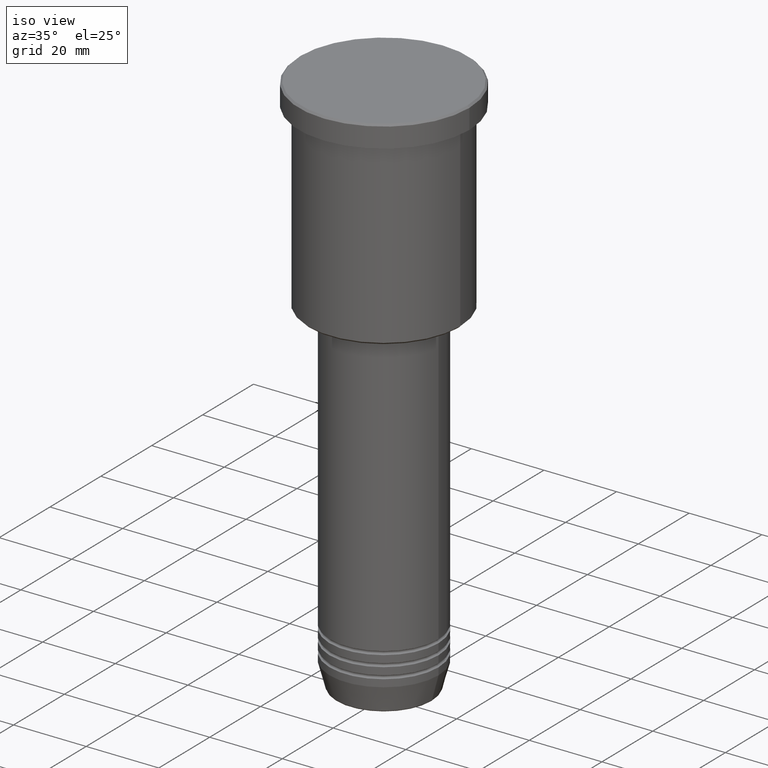
[diagram: clean part render]
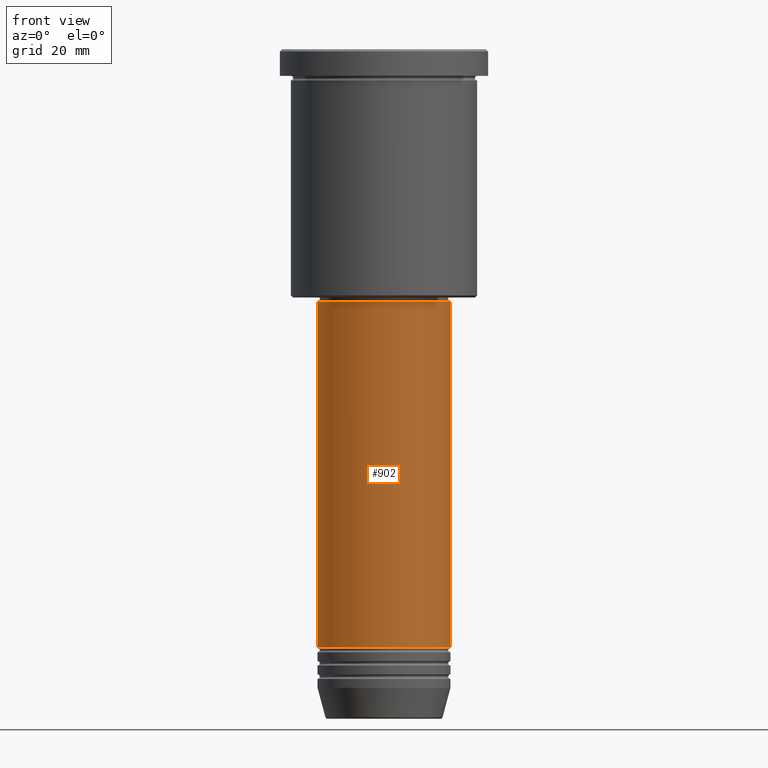
[diagram: tour spotlight — one face highlighted and labeled with its STEP entity id]
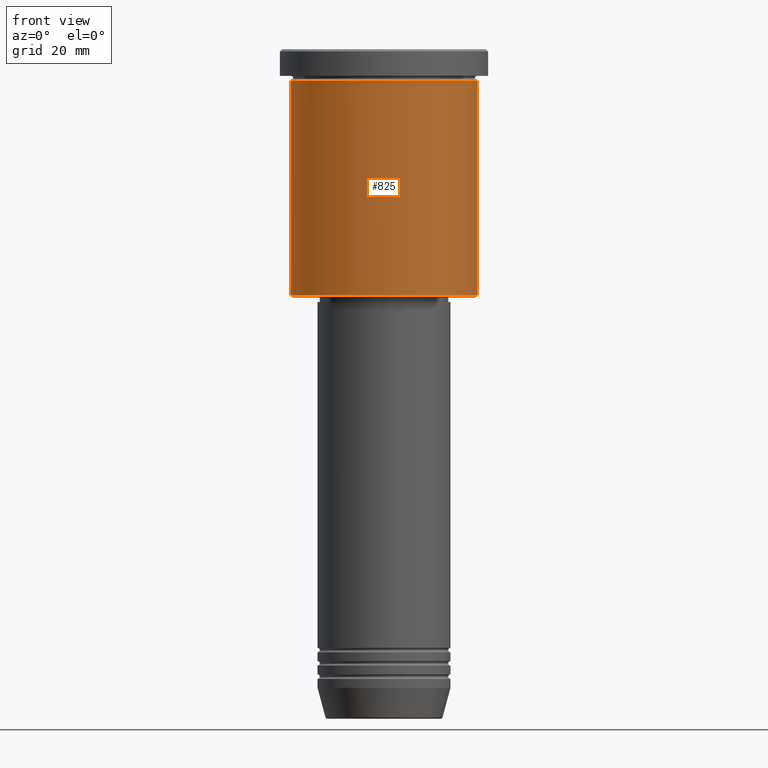
[diagram: tour spotlight — one face highlighted and labeled with its STEP entity id]
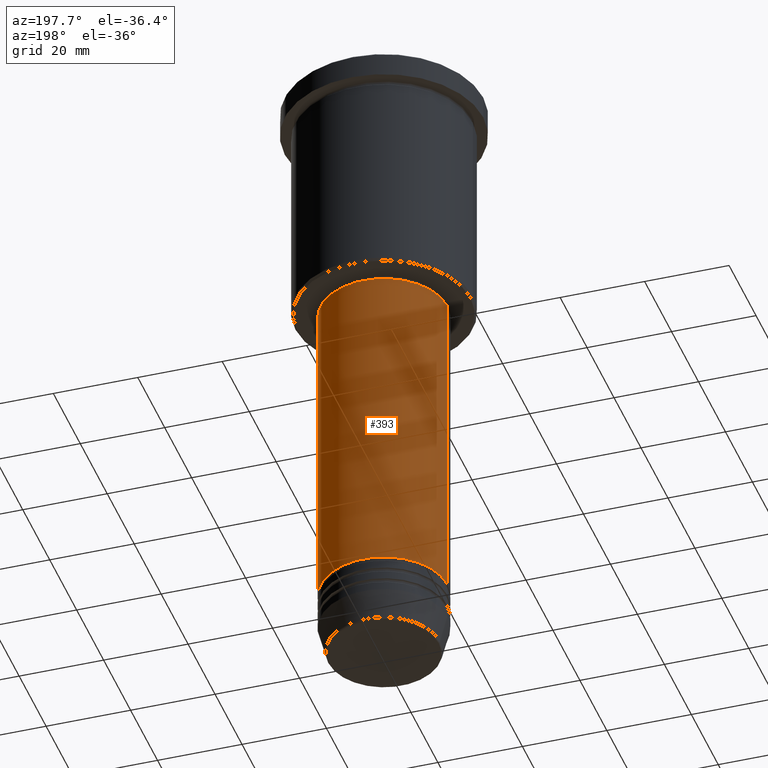
[diagram: tour spotlight — one face highlighted and labeled with its STEP entity id]
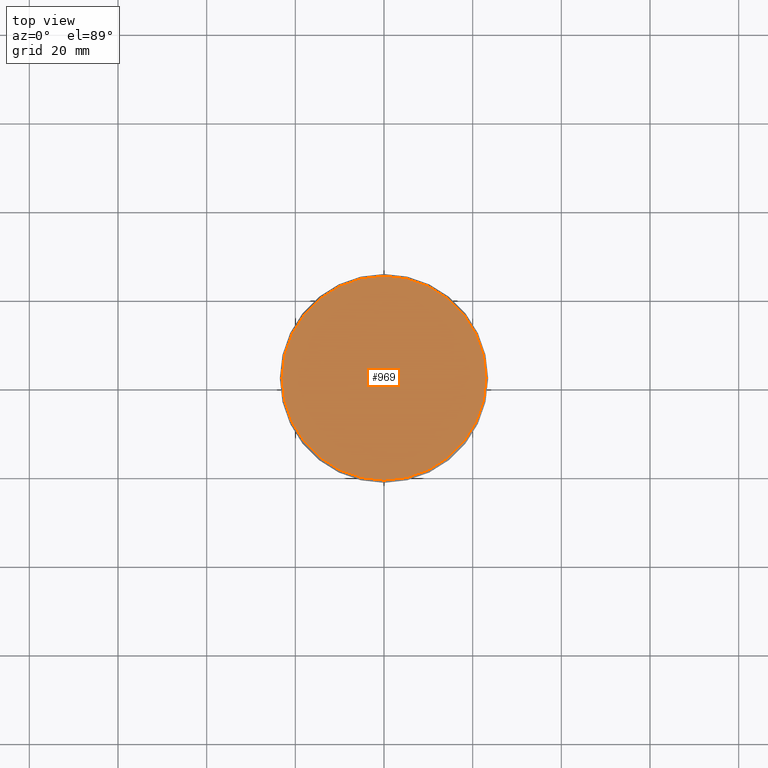
[diagram: tour spotlight — one face highlighted and labeled with its STEP entity id]
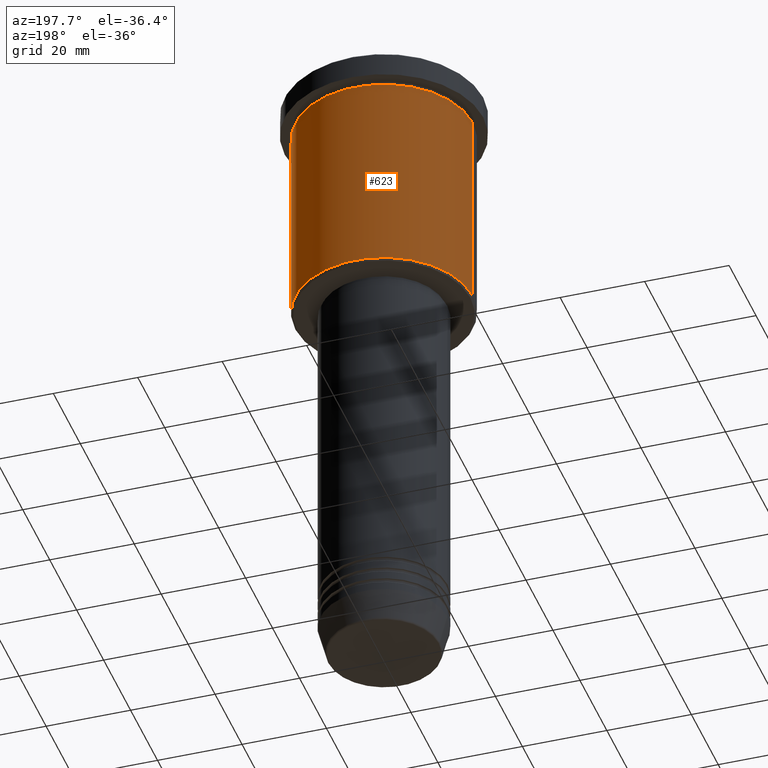
[diagram: tour spotlight — one face highlighted and labeled with its STEP entity id]
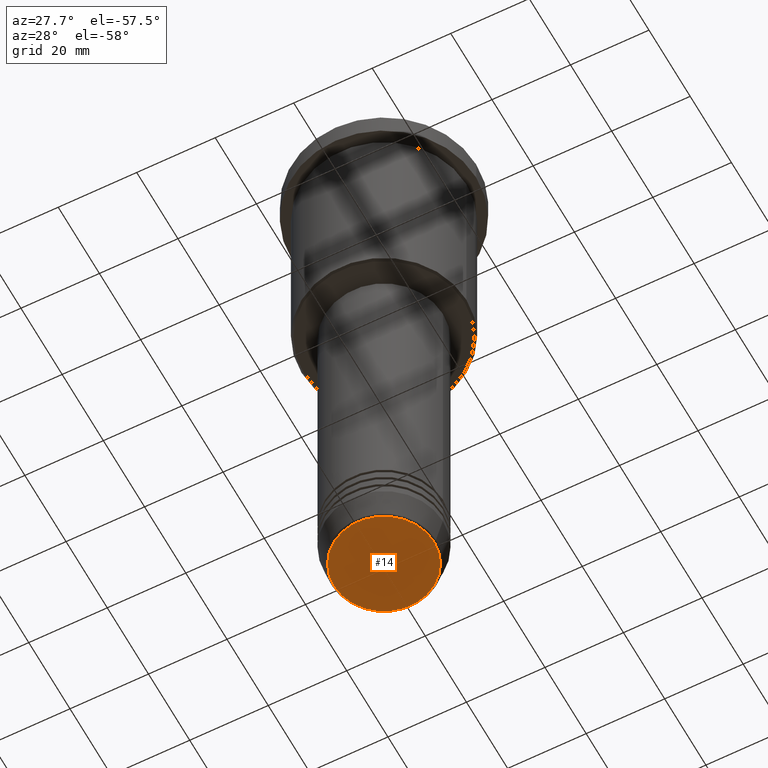
[diagram: tour spotlight — one face highlighted and labeled with its STEP entity id]
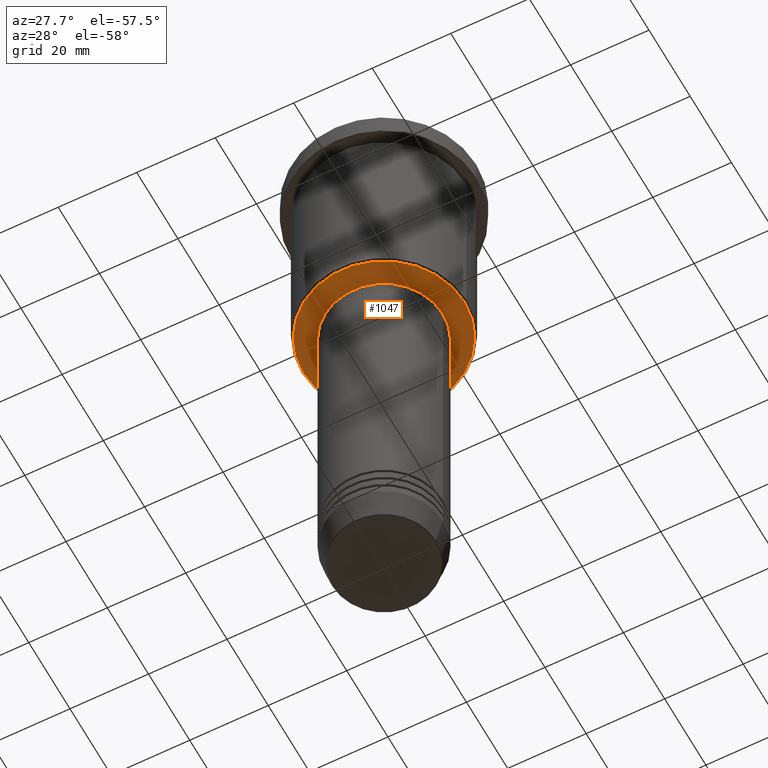
[diagram: tour spotlight — one face highlighted and labeled with its STEP entity id]
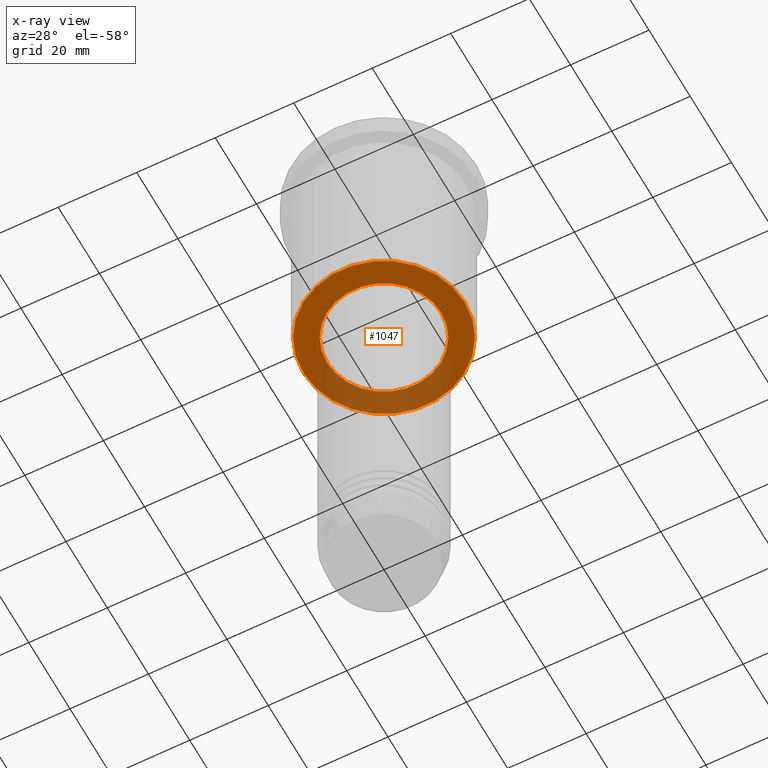
[diagram: x-ray of the same camera — body ghosted, this tour face saturated]
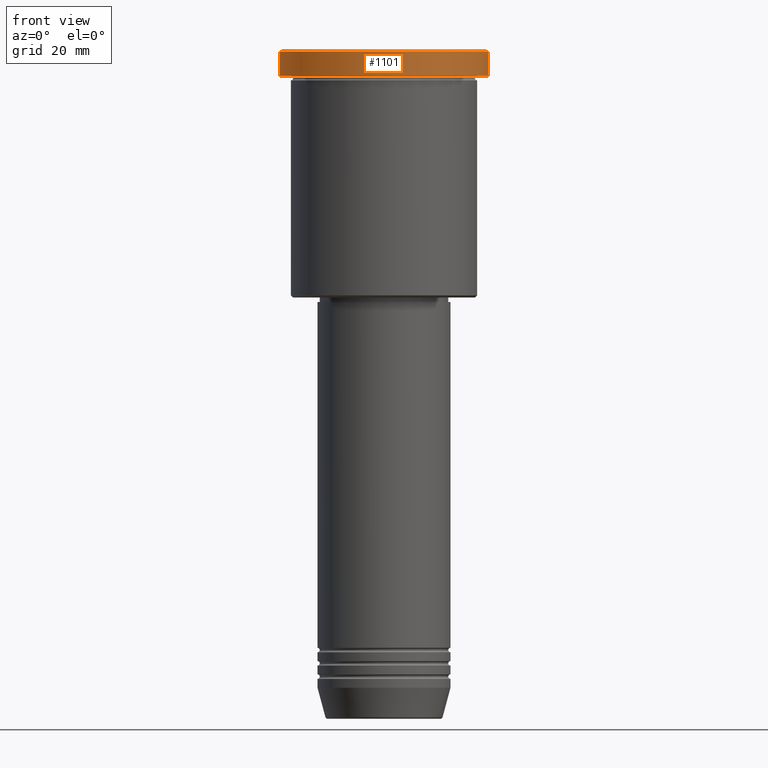
[diagram: tour spotlight — one face highlighted and labeled with its STEP entity id]
A machine part: a face-by-face anatomy tour. The part has 43 B-rep faces; the first image is the clean iso view, then the 8 largest visible faces are spotlighted one at a time (largest first), each with its STEP entity span.

Face 1 — front view, entity #902. In plain terms, the highlighted cylindrical surface (partial cylindrical patch) has radius 15 mm, axis along (-0, -0, 1).
Definition (entity closure, byte-faithful):
#22 = CARTESIAN_POINT ( 'NONE',  ( -15.00000000000000000, 1.836970198721029589E-15, 0.000000000000000000 ) ) ;
#75 = DIRECTION ( 'NONE',  ( -0.000000000000000000, -0.000000000000000000, 1.000000000000000000 ) ) ;
#79 = VERTEX_POINT ( 'NONE', #297 ) ;
#82 = CIRCLE ( 'NONE', #728, 15.00000000000000000 ) ;
#114 = DIRECTION ( 'NONE',  ( 1.000000000000000000, 0.000000000000000000, 0.000000000000000000 ) ) ;
#131 = VERTEX_POINT ( 'NONE', #847 ) ;
#157 = FACE_OUTER_BOUND ( 'NONE', #427, .T. ) ;
#162 = DIRECTION ( 'NONE',  ( -0.000000000000000000, -0.000000000000000000, 1.000000000000000000 ) ) ;
#191 = AXIS2_PLACEMENT_3D ( 'NONE', #700, #75, #802 ) ;
#231 = VERTEX_POINT ( 'NONE', #507 ) ;
#272 = CARTESIAN_POINT ( 'NONE',  ( 15.00000000000000000, 0.000000000000000000, -134.9999999999999716 ) ) ;
#277 = AXIS2_PLACEMENT_3D ( 'NONE', #1123, #1130, #114 ) ;
#297 = CARTESIAN_POINT ( 'NONE',  ( -15.00000000000000000, 1.836970198721029589E-15, -57.00000000000001421 ) ) ;
#360 = ORIENTED_EDGE ( 'NONE', *, *, #1147, .T. ) ;
#364 = VECTOR ( 'NONE', #606, 1000.000000000000000 ) ;
#381 = DIRECTION ( 'NONE',  ( -0.000000000000000000, -0.000000000000000000, 1.000000000000000000 ) ) ;
#391 = EDGE_CURVE ( 'NONE', #664, #231, #784, .T. ) ;
#402 = VECTOR ( 'NONE', #381, 1000.000000000000000 ) ;
#427 = EDGE_LOOP ( 'NONE', ( #746, #360, #1003, #999 ) ) ;
#444 = EDGE_CURVE ( 'NONE', #131, #79, #1134, .T. ) ;
#507 = CARTESIAN_POINT ( 'NONE',  ( 15.00000000000000000, 0.000000000000000000, -57.00000000000001421 ) ) ;
#606 = DIRECTION ( 'NONE',  ( -0.000000000000000000, -0.000000000000000000, 1.000000000000000000 ) ) ;
#664 = VERTEX_POINT ( 'NONE', #272 ) ;
#700 = CARTESIAN_POINT ( 'NONE',  ( 0.000000000000000000, 0.000000000000000000, 0.000000000000000000 ) ) ;
#728 = AXIS2_PLACEMENT_3D ( 'NONE', #822, #162, #741 ) ;
#741 = DIRECTION ( 'NONE',  ( 1.000000000000000000, 0.000000000000000000, 0.000000000000000000 ) ) ;
#746 = ORIENTED_EDGE ( 'NONE', *, *, #444, .F. ) ;
#784 = LINE ( 'NONE', #884, #364 ) ;
#802 = DIRECTION ( 'NONE',  ( 1.000000000000000000, 0.000000000000000000, 0.000000000000000000 ) ) ;
#804 = CIRCLE ( 'NONE', #277, 15.00000000000000000 ) ;
#822 = CARTESIAN_POINT ( 'NONE',  ( 0.000000000000000000, 0.000000000000000000, -57.00000000000001421 ) ) ;
#847 = CARTESIAN_POINT ( 'NONE',  ( -15.00000000000000000, 1.836970198721029589E-15, -134.9999999999999716 ) ) ;
#884 = CARTESIAN_POINT ( 'NONE',  ( 15.00000000000000000, 0.000000000000000000, 0.000000000000000000 ) ) ;
#902 = ADVANCED_FACE ( 'NONE', ( #157 ), #1093, .T. ) ;
#999 = ORIENTED_EDGE ( 'NONE', *, *, #1057, .F. ) ;
#1003 = ORIENTED_EDGE ( 'NONE', *, *, #391, .T. ) ;
#1057 = EDGE_CURVE ( 'NONE', #79, #231, #82, .T. ) ;
#1093 = CYLINDRICAL_SURFACE ( 'NONE', #191, 15.00000000000000000 ) ;
#1123 = CARTESIAN_POINT ( 'NONE',  ( 0.000000000000000000, 0.000000000000000000, -134.9999999999999716 ) ) ;
#1130 = DIRECTION ( 'NONE',  ( -0.000000000000000000, -0.000000000000000000, 1.000000000000000000 ) ) ;
#1134 = LINE ( 'NONE', #22, #402 ) ;
#1147 = EDGE_CURVE ( 'NONE', #131, #664, #804, .T. ) ;

Face 2 — front view, entity #825. In plain terms, the highlighted cylindrical surface (partial cylindrical patch) has radius 21 mm, axis along (-0, -0, 1).
Definition (entity closure, byte-faithful):
#3 = VERTEX_POINT ( 'NONE', #734 ) ;
#66 = AXIS2_PLACEMENT_3D ( 'NONE', #796, #609, #978 ) ;
#88 = DIRECTION ( 'NONE',  ( -0.000000000000000000, -0.000000000000000000, 1.000000000000000000 ) ) ;
#133 = FACE_OUTER_BOUND ( 'NONE', #1142, .T. ) ;
#155 = CARTESIAN_POINT ( 'NONE',  ( 21.00000000000000000, 0.000000000000000000, -55.50000000000002132 ) ) ;
#174 = AXIS2_PLACEMENT_3D ( 'NONE', #1166, #702, #424 ) ;
#181 = EDGE_CURVE ( 'NONE', #575, #373, #1170, .T. ) ;
#189 = CIRCLE ( 'NONE', #673, 21.00000000000000000 ) ;
#232 = DIRECTION ( 'NONE',  ( -0.000000000000000000, -0.000000000000000000, 1.000000000000000000 ) ) ;
#337 = CARTESIAN_POINT ( 'NONE',  ( 21.00000000000000000, 0.000000000000000000, 0.000000000000000000 ) ) ;
#373 = VERTEX_POINT ( 'NONE', #155 ) ;
#424 = DIRECTION ( 'NONE',  ( -1.000000000000000000, 0.000000000000000000, 0.000000000000000000 ) ) ;
#453 = ORIENTED_EDGE ( 'NONE', *, *, #181, .T. ) ;
#494 = CARTESIAN_POINT ( 'NONE',  ( -21.00000000000000000, 2.571758278209441661E-15, -6.999999999999994671 ) ) ;
#506 = LINE ( 'NONE', #596, #878 ) ;
#568 = ORIENTED_EDGE ( 'NONE', *, *, #628, .F. ) ;
#575 = VERTEX_POINT ( 'NONE', #911 ) ;
#596 = CARTESIAN_POINT ( 'NONE',  ( -21.00000000000000000, 2.571758278209441661E-15, 0.000000000000000000 ) ) ;
#609 = DIRECTION ( 'NONE',  ( -0.000000000000000000, -0.000000000000000000, 1.000000000000000000 ) ) ;
#625 = ORIENTED_EDGE ( 'NONE', *, *, #790, .F. ) ;
#627 = CARTESIAN_POINT ( 'NONE',  ( 0.000000000000000000, 0.000000000000000000, -6.999999999999994671 ) ) ;
#628 = EDGE_CURVE ( 'NONE', #1114, #3, #189, .T. ) ;
#633 = DIRECTION ( 'NONE',  ( 1.000000000000000000, 0.000000000000000000, 0.000000000000000000 ) ) ;
#673 = AXIS2_PLACEMENT_3D ( 'NONE', #627, #88, #633 ) ;
#682 = CYLINDRICAL_SURFACE ( 'NONE', #66, 21.00000000000000000 ) ;
#702 = DIRECTION ( 'NONE',  ( -0.000000000000000000, -0.000000000000000000, 1.000000000000000000 ) ) ;
#734 = CARTESIAN_POINT ( 'NONE',  ( 21.00000000000000000, 0.000000000000000000, -6.999999999999994671 ) ) ;
#790 = EDGE_CURVE ( 'NONE', #575, #1114, #506, .T. ) ;
#796 = CARTESIAN_POINT ( 'NONE',  ( 0.000000000000000000, 0.000000000000000000, 0.000000000000000000 ) ) ;
#825 = ADVANCED_FACE ( 'NONE', ( #133 ), #682, .T. ) ;
#868 = EDGE_CURVE ( 'NONE', #373, #3, #886, .T. ) ;
#878 = VECTOR ( 'NONE', #232, 1000.000000000000000 ) ;
#885 = ORIENTED_EDGE ( 'NONE', *, *, #868, .T. ) ;
#886 = LINE ( 'NONE', #337, #1140 ) ;
#911 = CARTESIAN_POINT ( 'NONE',  ( -21.00000000000000000, 2.571758278209441661E-15, -55.50000000000002132 ) ) ;
#978 = DIRECTION ( 'NONE',  ( 1.000000000000000000, 0.000000000000000000, 0.000000000000000000 ) ) ;
#986 = DIRECTION ( 'NONE',  ( -0.000000000000000000, -0.000000000000000000, 1.000000000000000000 ) ) ;
#1114 = VERTEX_POINT ( 'NONE', #494 ) ;
#1140 = VECTOR ( 'NONE', #986, 1000.000000000000000 ) ;
#1142 = EDGE_LOOP ( 'NONE', ( #625, #453, #885, #568 ) ) ;
#1166 = CARTESIAN_POINT ( 'NONE',  ( 0.000000000000000000, 0.000000000000000000, -55.50000000000002132 ) ) ;
#1170 = CIRCLE ( 'NONE', #174, 21.00000000000000000 ) ;

Face 3 — auxiliary view, entity #393. In plain terms, the highlighted cylindrical surface (partial cylindrical patch) has radius 15 mm, axis along (-0, -0, 1).
Definition (entity closure, byte-faithful):
#22 = CARTESIAN_POINT ( 'NONE',  ( -15.00000000000000000, 1.836970198721029589E-15, 0.000000000000000000 ) ) ;
#26 = AXIS2_PLACEMENT_3D ( 'NONE', #510, #975, #146 ) ;
#79 = VERTEX_POINT ( 'NONE', #297 ) ;
#117 = EDGE_CURVE ( 'NONE', #664, #131, #1023, .T. ) ;
#131 = VERTEX_POINT ( 'NONE', #847 ) ;
#140 = FACE_OUTER_BOUND ( 'NONE', #829, .T. ) ;
#146 = DIRECTION ( 'NONE',  ( 1.000000000000000000, 0.000000000000000000, 0.000000000000000000 ) ) ;
#150 = AXIS2_PLACEMENT_3D ( 'NONE', #921, #930, #570 ) ;
#158 = DIRECTION ( 'NONE',  ( 1.000000000000000000, 0.000000000000000000, 0.000000000000000000 ) ) ;
#231 = VERTEX_POINT ( 'NONE', #507 ) ;
#272 = CARTESIAN_POINT ( 'NONE',  ( 15.00000000000000000, 0.000000000000000000, -134.9999999999999716 ) ) ;
#280 = ORIENTED_EDGE ( 'NONE', *, *, #391, .F. ) ;
#297 = CARTESIAN_POINT ( 'NONE',  ( -15.00000000000000000, 1.836970198721029589E-15, -57.00000000000001421 ) ) ;
#299 = ORIENTED_EDGE ( 'NONE', *, *, #444, .T. ) ;
#361 = DIRECTION ( 'NONE',  ( -0.000000000000000000, -0.000000000000000000, 1.000000000000000000 ) ) ;
#364 = VECTOR ( 'NONE', #606, 1000.000000000000000 ) ;
#381 = DIRECTION ( 'NONE',  ( -0.000000000000000000, -0.000000000000000000, 1.000000000000000000 ) ) ;
#391 = EDGE_CURVE ( 'NONE', #664, #231, #784, .T. ) ;
#393 = ADVANCED_FACE ( 'NONE', ( #140 ), #430, .T. ) ;
#402 = VECTOR ( 'NONE', #381, 1000.000000000000000 ) ;
#430 = CYLINDRICAL_SURFACE ( 'NONE', #26, 15.00000000000000000 ) ;
#444 = EDGE_CURVE ( 'NONE', #131, #79, #1134, .T. ) ;
#477 = AXIS2_PLACEMENT_3D ( 'NONE', #893, #361, #158 ) ;
#507 = CARTESIAN_POINT ( 'NONE',  ( 15.00000000000000000, 0.000000000000000000, -57.00000000000001421 ) ) ;
#510 = CARTESIAN_POINT ( 'NONE',  ( 0.000000000000000000, 0.000000000000000000, 0.000000000000000000 ) ) ;
#570 = DIRECTION ( 'NONE',  ( 1.000000000000000000, 0.000000000000000000, 0.000000000000000000 ) ) ;
#594 = CIRCLE ( 'NONE', #477, 15.00000000000000000 ) ;
#606 = DIRECTION ( 'NONE',  ( -0.000000000000000000, -0.000000000000000000, 1.000000000000000000 ) ) ;
#650 = EDGE_CURVE ( 'NONE', #231, #79, #594, .T. ) ;
#664 = VERTEX_POINT ( 'NONE', #272 ) ;
#680 = ORIENTED_EDGE ( 'NONE', *, *, #650, .F. ) ;
#784 = LINE ( 'NONE', #884, #364 ) ;
#829 = EDGE_LOOP ( 'NONE', ( #933, #299, #680, #280 ) ) ;
#847 = CARTESIAN_POINT ( 'NONE',  ( -15.00000000000000000, 1.836970198721029589E-15, -134.9999999999999716 ) ) ;
#884 = CARTESIAN_POINT ( 'NONE',  ( 15.00000000000000000, 0.000000000000000000, 0.000000000000000000 ) ) ;
#893 = CARTESIAN_POINT ( 'NONE',  ( 0.000000000000000000, 0.000000000000000000, -57.00000000000001421 ) ) ;
#921 = CARTESIAN_POINT ( 'NONE',  ( 0.000000000000000000, 0.000000000000000000, -134.9999999999999716 ) ) ;
#930 = DIRECTION ( 'NONE',  ( -0.000000000000000000, -0.000000000000000000, 1.000000000000000000 ) ) ;
#933 = ORIENTED_EDGE ( 'NONE', *, *, #117, .T. ) ;
#975 = DIRECTION ( 'NONE',  ( -0.000000000000000000, -0.000000000000000000, 1.000000000000000000 ) ) ;
#1023 = CIRCLE ( 'NONE', #150, 15.00000000000000000 ) ;
#1134 = LINE ( 'NONE', #22, #402 ) ;

Face 4 — top view, entity #969. In plain terms, the highlighted planar face has unit normal (0, -0, 1).
Definition (entity closure, byte-faithful):
#147 = ORIENTED_EDGE ( 'NONE', *, *, #988, .T. ) ;
#176 = VERTEX_POINT ( 'NONE', #406 ) ;
#202 = CARTESIAN_POINT ( 'NONE',  ( 0.000000000000000000, 0.000000000000000000, 0.000000000000000000 ) ) ;
#218 = CARTESIAN_POINT ( 'NONE',  ( -23.00000000000001066, 0.000000000000000000, 0.000000000000000000 ) ) ;
#243 = CARTESIAN_POINT ( 'NONE',  ( 0.000000000000000000, 0.000000000000000000, 0.000000000000000000 ) ) ;
#292 = EDGE_LOOP ( 'NONE', ( #147, #1104 ) ) ;
#304 = AXIS2_PLACEMENT_3D ( 'NONE', #676, #512, #879 ) ;
#310 = PLANE ( 'NONE',  #304 ) ;
#346 = CIRCLE ( 'NONE', #812, 23.00000000000001066 ) ;
#406 = CARTESIAN_POINT ( 'NONE',  ( 23.00000000000001066, 2.847303808017596928E-15, 0.000000000000000000 ) ) ;
#480 = EDGE_CURVE ( 'NONE', #176, #1099, #346, .T. ) ;
#512 = DIRECTION ( 'NONE',  ( 0.000000000000000000, -0.000000000000000000, 1.000000000000000000 ) ) ;
#536 = FACE_OUTER_BOUND ( 'NONE', #292, .T. ) ;
#612 = DIRECTION ( 'NONE',  ( 1.000000000000000000, 0.000000000000000000, 0.000000000000000000 ) ) ;
#613 = CIRCLE ( 'NONE', #875, 23.00000000000001066 ) ;
#676 = CARTESIAN_POINT ( 'NONE',  ( 0.000000000000000000, 0.000000000000000000, 0.000000000000000000 ) ) ;
#812 = AXIS2_PLACEMENT_3D ( 'NONE', #202, #851, #1053 ) ;
#851 = DIRECTION ( 'NONE',  ( -0.000000000000000000, -0.000000000000000000, 1.000000000000000000 ) ) ;
#875 = AXIS2_PLACEMENT_3D ( 'NONE', #243, #1162, #612 ) ;
#879 = DIRECTION ( 'NONE',  ( 1.000000000000000000, 0.000000000000000000, 0.000000000000000000 ) ) ;
#969 = ADVANCED_FACE ( 'NONE', ( #536 ), #310, .T. ) ;
#988 = EDGE_CURVE ( 'NONE', #1099, #176, #613, .T. ) ;
#1053 = DIRECTION ( 'NONE',  ( 1.000000000000000000, 0.000000000000000000, 0.000000000000000000 ) ) ;
#1099 = VERTEX_POINT ( 'NONE', #218 ) ;
#1104 = ORIENTED_EDGE ( 'NONE', *, *, #480, .T. ) ;
#1162 = DIRECTION ( 'NONE',  ( -0.000000000000000000, -0.000000000000000000, 1.000000000000000000 ) ) ;

Face 5 — auxiliary view, entity #623. In plain terms, the highlighted cylindrical surface (partial cylindrical patch) has radius 21 mm, axis along (-0, -0, 1).
Definition (entity closure, byte-faithful):
#3 = VERTEX_POINT ( 'NONE', #734 ) ;
#33 = DIRECTION ( 'NONE',  ( -1.000000000000000000, 0.000000000000000000, 0.000000000000000000 ) ) ;
#59 = EDGE_CURVE ( 'NONE', #3, #1114, #772, .T. ) ;
#95 = CYLINDRICAL_SURFACE ( 'NONE', #134, 21.00000000000000000 ) ;
#134 = AXIS2_PLACEMENT_3D ( 'NONE', #456, #524, #1156 ) ;
#155 = CARTESIAN_POINT ( 'NONE',  ( 21.00000000000000000, 0.000000000000000000, -55.50000000000002132 ) ) ;
#232 = DIRECTION ( 'NONE',  ( -0.000000000000000000, -0.000000000000000000, 1.000000000000000000 ) ) ;
#337 = CARTESIAN_POINT ( 'NONE',  ( 21.00000000000000000, 0.000000000000000000, 0.000000000000000000 ) ) ;
#341 = ORIENTED_EDGE ( 'NONE', *, *, #790, .T. ) ;
#369 = ORIENTED_EDGE ( 'NONE', *, *, #868, .F. ) ;
#373 = VERTEX_POINT ( 'NONE', #155 ) ;
#433 = EDGE_LOOP ( 'NONE', ( #971, #341, #602, #369 ) ) ;
#456 = CARTESIAN_POINT ( 'NONE',  ( 0.000000000000000000, 0.000000000000000000, 0.000000000000000000 ) ) ;
#494 = CARTESIAN_POINT ( 'NONE',  ( -21.00000000000000000, 2.571758278209441661E-15, -6.999999999999994671 ) ) ;
#497 = AXIS2_PLACEMENT_3D ( 'NONE', #654, #1128, #661 ) ;
#506 = LINE ( 'NONE', #596, #878 ) ;
#524 = DIRECTION ( 'NONE',  ( -0.000000000000000000, -0.000000000000000000, 1.000000000000000000 ) ) ;
#549 = FACE_OUTER_BOUND ( 'NONE', #433, .T. ) ;
#575 = VERTEX_POINT ( 'NONE', #911 ) ;
#581 = CARTESIAN_POINT ( 'NONE',  ( 0.000000000000000000, 0.000000000000000000, -55.50000000000002132 ) ) ;
#596 = CARTESIAN_POINT ( 'NONE',  ( -21.00000000000000000, 2.571758278209441661E-15, 0.000000000000000000 ) ) ;
#602 = ORIENTED_EDGE ( 'NONE', *, *, #59, .F. ) ;
#623 = ADVANCED_FACE ( 'NONE', ( #549 ), #95, .T. ) ;
#654 = CARTESIAN_POINT ( 'NONE',  ( 0.000000000000000000, 0.000000000000000000, -6.999999999999994671 ) ) ;
#661 = DIRECTION ( 'NONE',  ( 1.000000000000000000, 0.000000000000000000, 0.000000000000000000 ) ) ;
#675 = DIRECTION ( 'NONE',  ( -0.000000000000000000, -0.000000000000000000, 1.000000000000000000 ) ) ;
#732 = CIRCLE ( 'NONE', #1024, 21.00000000000000000 ) ;
#734 = CARTESIAN_POINT ( 'NONE',  ( 21.00000000000000000, 0.000000000000000000, -6.999999999999994671 ) ) ;
#759 = EDGE_CURVE ( 'NONE', #373, #575, #732, .T. ) ;
#772 = CIRCLE ( 'NONE', #497, 21.00000000000000000 ) ;
#790 = EDGE_CURVE ( 'NONE', #575, #1114, #506, .T. ) ;
#868 = EDGE_CURVE ( 'NONE', #373, #3, #886, .T. ) ;
#878 = VECTOR ( 'NONE', #232, 1000.000000000000000 ) ;
#886 = LINE ( 'NONE', #337, #1140 ) ;
#911 = CARTESIAN_POINT ( 'NONE',  ( -21.00000000000000000, 2.571758278209441661E-15, -55.50000000000002132 ) ) ;
#971 = ORIENTED_EDGE ( 'NONE', *, *, #759, .T. ) ;
#986 = DIRECTION ( 'NONE',  ( -0.000000000000000000, -0.000000000000000000, 1.000000000000000000 ) ) ;
#1024 = AXIS2_PLACEMENT_3D ( 'NONE', #581, #675, #33 ) ;
#1114 = VERTEX_POINT ( 'NONE', #494 ) ;
#1128 = DIRECTION ( 'NONE',  ( -0.000000000000000000, -0.000000000000000000, 1.000000000000000000 ) ) ;
#1140 = VECTOR ( 'NONE', #986, 1000.000000000000000 ) ;
#1156 = DIRECTION ( 'NONE',  ( 1.000000000000000000, 0.000000000000000000, 0.000000000000000000 ) ) ;

Face 6 — auxiliary view, entity #14. In plain terms, the highlighted planar face has unit normal (0, -0, 1).
Definition (entity closure, byte-faithful):
#4 = CARTESIAN_POINT ( 'NONE',  ( 12.74069215899265828, 0.000000000000000000, -151.0000000000000284 ) ) ;
#10 = VERTEX_POINT ( 'NONE', #1108 ) ;
#14 = ADVANCED_FACE ( 'NONE', ( #274 ), #1017, .F. ) ;
#43 = AXIS2_PLACEMENT_3D ( 'NONE', #262, #743, #180 ) ;
#103 = EDGE_LOOP ( 'NONE', ( #141, #466 ) ) ;
#141 = ORIENTED_EDGE ( 'NONE', *, *, #995, .T. ) ;
#180 = DIRECTION ( 'NONE',  ( 1.000000000000000000, 0.000000000000000000, 0.000000000000000000 ) ) ;
#185 = DIRECTION ( 'NONE',  ( 0.000000000000000000, -0.000000000000000000, 1.000000000000000000 ) ) ;
#262 = CARTESIAN_POINT ( 'NONE',  ( 0.000000000000000000, 0.000000000000000000, -151.0000000000000284 ) ) ;
#274 = FACE_OUTER_BOUND ( 'NONE', #103, .T. ) ;
#367 = DIRECTION ( 'NONE',  ( 1.000000000000000000, 0.000000000000000000, 0.000000000000000000 ) ) ;
#371 = DIRECTION ( 'NONE',  ( 1.000000000000000000, 0.000000000000000000, 0.000000000000000000 ) ) ;
#466 = ORIENTED_EDGE ( 'NONE', *, *, #1002, .T. ) ;
#538 = CIRCLE ( 'NONE', #43, 12.74069215899265828 ) ;
#640 = CARTESIAN_POINT ( 'NONE',  ( 0.000000000000000000, 0.000000000000000000, -151.0000000000000284 ) ) ;
#642 = CARTESIAN_POINT ( 'NONE',  ( 0.000000000000000000, 0.000000000000000000, -151.0000000000000284 ) ) ;
#645 = VERTEX_POINT ( 'NONE', #4 ) ;
#689 = CIRCLE ( 'NONE', #981, 12.74069215899265828 ) ;
#743 = DIRECTION ( 'NONE',  ( 0.000000000000000000, 0.000000000000000000, -1.000000000000000000 ) ) ;
#748 = AXIS2_PLACEMENT_3D ( 'NONE', #642, #185, #371 ) ;
#981 = AXIS2_PLACEMENT_3D ( 'NONE', #640, #1013, #367 ) ;
#995 = EDGE_CURVE ( 'NONE', #645, #10, #689, .T. ) ;
#1002 = EDGE_CURVE ( 'NONE', #10, #645, #538, .T. ) ;
#1013 = DIRECTION ( 'NONE',  ( 0.000000000000000000, 0.000000000000000000, -1.000000000000000000 ) ) ;
#1017 = PLANE ( 'NONE',  #748 ) ;
#1108 = CARTESIAN_POINT ( 'NONE',  ( -12.74069215899265828, 1.589857736427681035E-15, -151.0000000000000284 ) ) ;

Face 7 — auxiliary view, entity #1047. An x-ray twin of the same camera follows (body ghosted, this face saturated) — the face is partly hidden behind the body. In plain terms, the highlighted planar face has unit normal (0, 0, -1).
Definition (entity closure, byte-faithful):
#18 = CARTESIAN_POINT ( 'NONE',  ( 0.000000000000000000, 0.000000000000000000, -56.00000000000000711 ) ) ;
#81 = CARTESIAN_POINT ( 'NONE',  ( 0.000000000000000000, 0.000000000000000000, -56.00000000000000711 ) ) ;
#126 = EDGE_CURVE ( 'NONE', #1067, #136, #399, .T. ) ;
#136 = VERTEX_POINT ( 'NONE', #1133 ) ;
#160 = DIRECTION ( 'NONE',  ( 0.000000000000000000, 0.000000000000000000, -1.000000000000000000 ) ) ;
#168 = VERTEX_POINT ( 'NONE', #754 ) ;
#240 = PLANE ( 'NONE',  #457 ) ;
#241 = CARTESIAN_POINT ( 'NONE',  ( 0.000000000000000000, 0.000000000000000000, -56.00000000000000711 ) ) ;
#254 = ORIENTED_EDGE ( 'NONE', *, *, #324, .T. ) ;
#266 = AXIS2_PLACEMENT_3D ( 'NONE', #525, #160, #434 ) ;
#279 = DIRECTION ( 'NONE',  ( 1.000000000000000000, 0.000000000000000000, 0.000000000000000000 ) ) ;
#284 = CARTESIAN_POINT ( 'NONE',  ( 20.50000000000001776, 0.000000000000000000, -56.00000000000000711 ) ) ;
#286 = DIRECTION ( 'NONE',  ( -1.000000000000000000, 0.000000000000000000, 0.000000000000000000 ) ) ;
#308 = AXIS2_PLACEMENT_3D ( 'NONE', #81, #438, #279 ) ;
#324 = EDGE_CURVE ( 'NONE', #136, #1067, #380, .T. ) ;
#372 = EDGE_CURVE ( 'NONE', #168, #877, #440, .T. ) ;
#380 = CIRCLE ( 'NONE', #266, 20.50000000000001776 ) ;
#399 = CIRCLE ( 'NONE', #418, 20.50000000000001776 ) ;
#405 = CARTESIAN_POINT ( 'NONE',  ( 14.49999999999999822, 0.000000000000000000, -56.00000000000000711 ) ) ;
#408 = DIRECTION ( 'NONE',  ( 1.000000000000000000, 0.000000000000000000, 0.000000000000000000 ) ) ;
#415 = EDGE_LOOP ( 'NONE', ( #824, #658 ) ) ;
#418 = AXIS2_PLACEMENT_3D ( 'NONE', #18, #474, #286 ) ;
#434 = DIRECTION ( 'NONE',  ( -1.000000000000000000, 0.000000000000000000, 0.000000000000000000 ) ) ;
#438 = DIRECTION ( 'NONE',  ( -0.000000000000000000, -0.000000000000000000, 1.000000000000000000 ) ) ;
#440 = CIRCLE ( 'NONE', #1120, 14.49999999999999822 ) ;
#448 = FACE_BOUND ( 'NONE', #415, .T. ) ;
#457 = AXIS2_PLACEMENT_3D ( 'NONE', #1096, #630, #715 ) ;
#474 = DIRECTION ( 'NONE',  ( 0.000000000000000000, 0.000000000000000000, -1.000000000000000000 ) ) ;
#525 = CARTESIAN_POINT ( 'NONE',  ( 0.000000000000000000, 0.000000000000000000, -56.00000000000000711 ) ) ;
#542 = EDGE_LOOP ( 'NONE', ( #1086, #254 ) ) ;
#595 = CIRCLE ( 'NONE', #308, 14.49999999999999822 ) ;
#630 = DIRECTION ( 'NONE',  ( 0.000000000000000000, 0.000000000000000000, -1.000000000000000000 ) ) ;
#658 = ORIENTED_EDGE ( 'NONE', *, *, #372, .T. ) ;
#715 = DIRECTION ( 'NONE',  ( -1.000000000000000000, 0.000000000000000000, -0.000000000000000000 ) ) ;
#754 = CARTESIAN_POINT ( 'NONE',  ( -14.49999999999999822, 1.775737858763662015E-15, -56.00000000000000711 ) ) ;
#817 = FACE_OUTER_BOUND ( 'NONE', #542, .T. ) ;
#824 = ORIENTED_EDGE ( 'NONE', *, *, #836, .T. ) ;
#836 = EDGE_CURVE ( 'NONE', #877, #168, #595, .T. ) ;
#877 = VERTEX_POINT ( 'NONE', #405 ) ;
#1047 = ADVANCED_FACE ( 'NONE', ( #817, #448 ), #240, .T. ) ;
#1067 = VERTEX_POINT ( 'NONE', #284 ) ;
#1070 = DIRECTION ( 'NONE',  ( -0.000000000000000000, -0.000000000000000000, 1.000000000000000000 ) ) ;
#1086 = ORIENTED_EDGE ( 'NONE', *, *, #126, .T. ) ;
#1096 = CARTESIAN_POINT ( 'NONE',  ( 0.000000000000000000, 21.00000000000000000, -56.00000000000000711 ) ) ;
#1120 = AXIS2_PLACEMENT_3D ( 'NONE', #241, #1070, #408 ) ;
#1133 = CARTESIAN_POINT ( 'NONE',  ( -20.50000000000001776, 2.541142108230759057E-15, -56.00000000000000711 ) ) ;

Face 8 — front view, entity #1101. In plain terms, the highlighted cylindrical surface (partial cylindrical patch) has radius 23.5 mm, axis along (-0, -0, 1).
Definition (entity closure, byte-faithful):
#19 = VERTEX_POINT ( 'NONE', #889 ) ;
#46 = CARTESIAN_POINT ( 'NONE',  ( 0.000000000000000000, 0.000000000000000000, -0.5000000000000143219 ) ) ;
#55 = DIRECTION ( 'NONE',  ( 1.000000000000000000, 0.000000000000000000, 0.000000000000000000 ) ) ;
#62 = FACE_OUTER_BOUND ( 'NONE', #943, .T. ) ;
#89 = ORIENTED_EDGE ( 'NONE', *, *, #253, .T. ) ;
#104 = CARTESIAN_POINT ( 'NONE',  ( -23.50000000000000000, 2.877919977996280320E-15, -0.5000000000000143219 ) ) ;
#120 = AXIS2_PLACEMENT_3D ( 'NONE', #46, #684, #1058 ) ;
#156 = VERTEX_POINT ( 'NONE', #104 ) ;
#169 = VERTEX_POINT ( 'NONE', #697 ) ;
#247 = AXIS2_PLACEMENT_3D ( 'NONE', #599, #805, #55 ) ;
#253 = EDGE_CURVE ( 'NONE', #169, #1161, #934, .T. ) ;
#333 = DIRECTION ( 'NONE',  ( 1.000000000000000000, 0.000000000000000000, 0.000000000000000000 ) ) ;
#423 = CARTESIAN_POINT ( 'NONE',  ( 0.000000000000000000, 0.000000000000000000, 0.000000000000000000 ) ) ;
#428 = EDGE_CURVE ( 'NONE', #169, #156, #655, .T. ) ;
#476 = DIRECTION ( 'NONE',  ( -0.000000000000000000, -0.000000000000000000, 1.000000000000000000 ) ) ;
#489 = CARTESIAN_POINT ( 'NONE',  ( -23.50000000000000000, 2.877919977996280320E-15, 0.000000000000000000 ) ) ;
#544 = ORIENTED_EDGE ( 'NONE', *, *, #428, .F. ) ;
#566 = EDGE_CURVE ( 'NONE', #19, #156, #653, .T. ) ;
#572 = DIRECTION ( 'NONE',  ( -0.000000000000000000, -0.000000000000000000, 1.000000000000000000 ) ) ;
#598 = CYLINDRICAL_SURFACE ( 'NONE', #953, 23.50000000000000000 ) ;
#599 = CARTESIAN_POINT ( 'NONE',  ( 0.000000000000000000, 0.000000000000000000, -5.999999999999994671 ) ) ;
#653 = CIRCLE ( 'NONE', #120, 23.50000000000000000 ) ;
#655 = LINE ( 'NONE', #489, #774 ) ;
#663 = LINE ( 'NONE', #1110, #1106 ) ;
#684 = DIRECTION ( 'NONE',  ( 0.000000000000000000, 0.000000000000000000, -1.000000000000000000 ) ) ;
#697 = CARTESIAN_POINT ( 'NONE',  ( -23.50000000000000000, 2.877919977996280320E-15, -5.999999999999994671 ) ) ;
#711 = EDGE_CURVE ( 'NONE', #1161, #19, #663, .T. ) ;
#721 = ORIENTED_EDGE ( 'NONE', *, *, #711, .T. ) ;
#774 = VECTOR ( 'NONE', #476, 1000.000000000000000 ) ;
#798 = DIRECTION ( 'NONE',  ( -0.000000000000000000, -0.000000000000000000, 1.000000000000000000 ) ) ;
#805 = DIRECTION ( 'NONE',  ( -0.000000000000000000, -0.000000000000000000, 1.000000000000000000 ) ) ;
#889 = CARTESIAN_POINT ( 'NONE',  ( 23.50000000000000000, 0.000000000000000000, -0.5000000000000143219 ) ) ;
#907 = ORIENTED_EDGE ( 'NONE', *, *, #566, .T. ) ;
#934 = CIRCLE ( 'NONE', #247, 23.50000000000000000 ) ;
#943 = EDGE_LOOP ( 'NONE', ( #544, #89, #721, #907 ) ) ;
#953 = AXIS2_PLACEMENT_3D ( 'NONE', #423, #798, #333 ) ;
#1058 = DIRECTION ( 'NONE',  ( 1.000000000000000000, 0.000000000000000000, 0.000000000000000000 ) ) ;
#1064 = CARTESIAN_POINT ( 'NONE',  ( 23.50000000000000000, 0.000000000000000000, -5.999999999999994671 ) ) ;
#1101 = ADVANCED_FACE ( 'NONE', ( #62 ), #598, .T. ) ;
#1106 = VECTOR ( 'NONE', #572, 1000.000000000000000 ) ;
#1110 = CARTESIAN_POINT ( 'NONE',  ( 23.50000000000000000, 0.000000000000000000, 0.000000000000000000 ) ) ;
#1161 = VERTEX_POINT ( 'NONE', #1064 ) ;